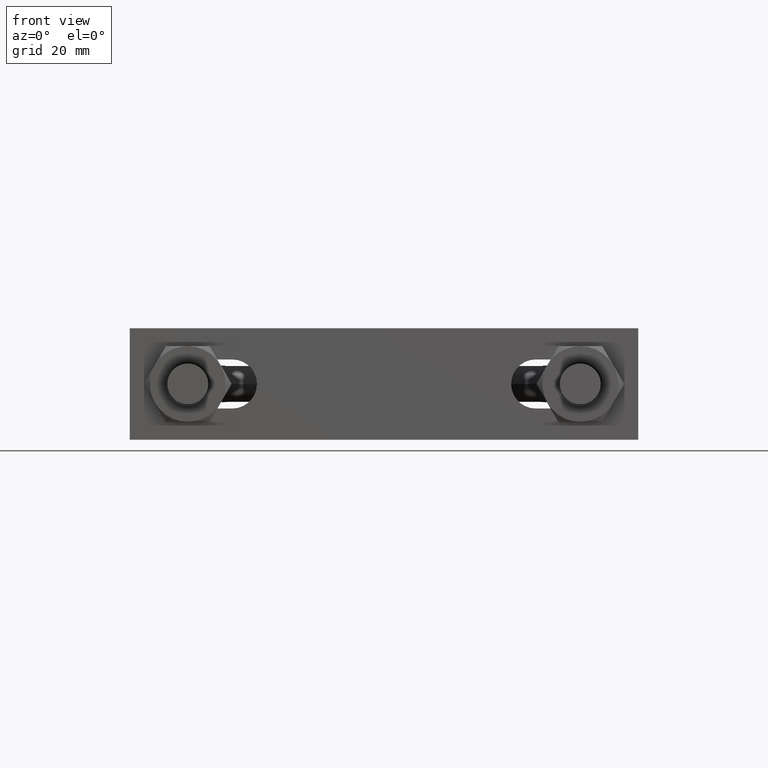
[diagram: clean part render]
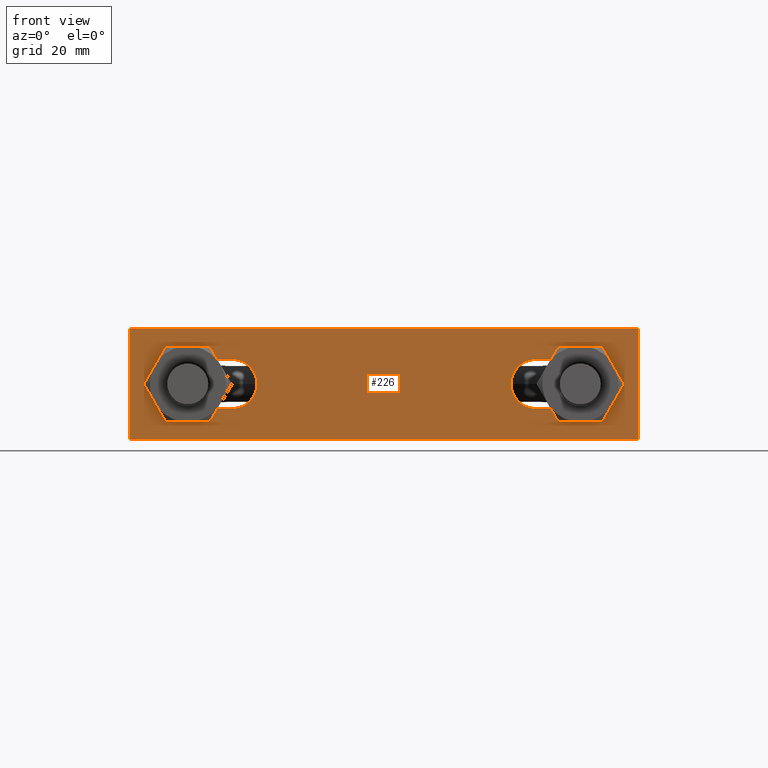
[diagram: same view with one face highlighted and labeled with its STEP entity id]
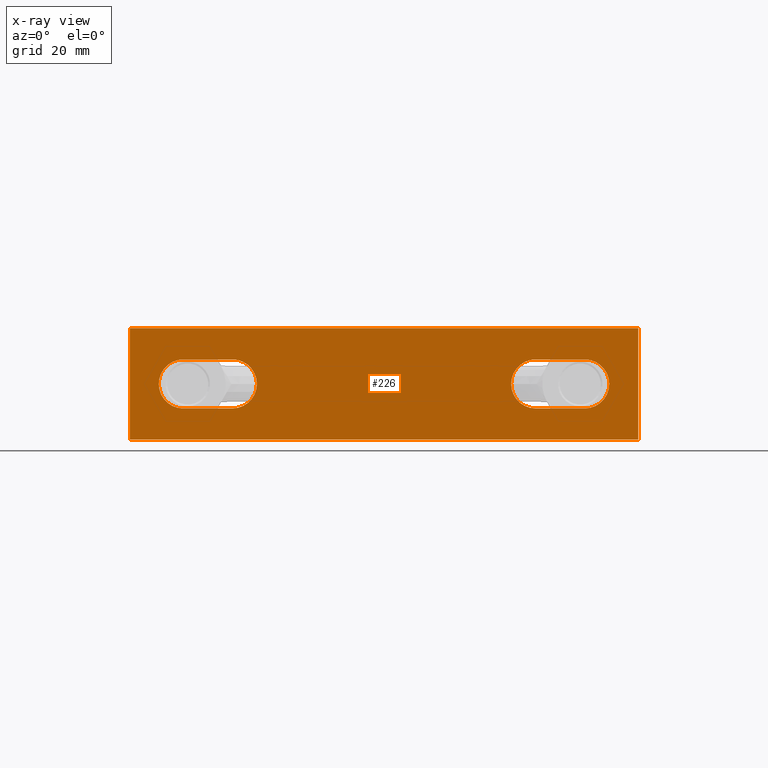
[diagram: x-ray of the same camera — body ghosted, the highlighted face saturated]
A machine part, front view. The second image highlights one B-rep face of the part: STEP entity #226.
The next image is the same camera in x-ray: the body ghosted, the highlighted face saturated — about 0% of this face is hidden behind the body in this view.
In plain terms, the highlighted planar face has unit normal (0, -1, 0).
Its self-contained STEP definition (entity closure, byte-faithful):
#226 = ADVANCED_FACE( '', ( #310, #311, #312 ), #313, .T. );
#310 = FACE_BOUND( '', #620, .T. );
#311 = FACE_OUTER_BOUND( '', #621, .T. );
#312 = FACE_BOUND( '', #622, .T. );
#313 = PLANE( '', #623 );
#620 = EDGE_LOOP( '', ( #792, #793, #794, #795, #796, #797 ) );
#621 = EDGE_LOOP( '', ( #798, #799, #800, #801 ) );
#622 = EDGE_LOOP( '', ( #802, #803, #804, #805, #806, #807 ) );
#623 = AXIS2_PLACEMENT_3D( '', #808, #809, #810 );
#792 = ORIENTED_EDGE( '', *, *, #1294, .F. );
#793 = ORIENTED_EDGE( '', *, *, #1295, .F. );
#794 = ORIENTED_EDGE( '', *, *, #1296, .F. );
#795 = ORIENTED_EDGE( '', *, *, #1297, .F. );
#796 = ORIENTED_EDGE( '', *, *, #1298, .F. );
#797 = ORIENTED_EDGE( '', *, *, #1299, .F. );
#798 = ORIENTED_EDGE( '', *, *, #1300, .T. );
#799 = ORIENTED_EDGE( '', *, *, #1301, .T. );
#800 = ORIENTED_EDGE( '', *, *, #1302, .T. );
#801 = ORIENTED_EDGE( '', *, *, #1303, .T. );
#802 = ORIENTED_EDGE( '', *, *, #1304, .F. );
#803 = ORIENTED_EDGE( '', *, *, #1305, .F. );
#804 = ORIENTED_EDGE( '', *, *, #1306, .F. );
#805 = ORIENTED_EDGE( '', *, *, #1307, .F. );
#806 = ORIENTED_EDGE( '', *, *, #1308, .F. );
#807 = ORIENTED_EDGE( '', *, *, #1309, .F. );
#808 = CARTESIAN_POINT( '', ( -57.0000000000000, -5.80000000000000, -12.5000000000000 ) );
#809 = DIRECTION( '', ( 0.000000000000000, -1.00000000000000, 6.12303176911189E-017 ) );
#810 = DIRECTION( '', ( 0.000000000000000, -6.12303176911189E-017, -1.00000000000000 ) );
#1294 = EDGE_CURVE( '', #1458, #1459, #1460, .T. );
#1295 = EDGE_CURVE( '', #1461, #1458, #1462, .F. );
#1296 = EDGE_CURVE( '', #1463, #1461, #1464, .F. );
#1297 = EDGE_CURVE( '', #1465, #1463, #1466, .T. );
#1298 = EDGE_CURVE( '', #1467, #1465, #1468, .F. );
#1299 = EDGE_CURVE( '', #1459, #1467, #1469, .F. );
#1300 = EDGE_CURVE( '', #1470, #1471, #1472, .T. );
#1301 = EDGE_CURVE( '', #1471, #1473, #1474, .T. );
#1302 = EDGE_CURVE( '', #1473, #1475, #1476, .T. );
#1303 = EDGE_CURVE( '', #1475, #1470, #1477, .T. );
#1304 = EDGE_CURVE( '', #1478, #1479, #1480, .T. );
#1305 = EDGE_CURVE( '', #1481, #1478, #1482, .F. );
#1306 = EDGE_CURVE( '', #1483, #1481, #1484, .F. );
#1307 = EDGE_CURVE( '', #1485, #1483, #1486, .T. );
#1308 = EDGE_CURVE( '', #1487, #1485, #1488, .F. );
#1309 = EDGE_CURVE( '', #1479, #1487, #1489, .F. );
#1458 = VERTEX_POINT( '', #1740 );
#1459 = VERTEX_POINT( '', #1741 );
#1460 = LINE( '', #1742, #1743 );
#1461 = VERTEX_POINT( '', #1744 );
#1462 = CIRCLE( '', #1745, 5.49999999999999 );
#1463 = VERTEX_POINT( '', #1746 );
#1464 = CIRCLE( '', #1747, 5.50000000000000 );
#1465 = VERTEX_POINT( '', #1748 );
#1466 = LINE( '', #1749, #1750 );
#1467 = VERTEX_POINT( '', #1751 );
#1468 = CIRCLE( '', #1752, 5.50000000000000 );
#1469 = CIRCLE( '', #1753, 5.50000000000000 );
#1470 = VERTEX_POINT( '', #1754 );
#1471 = VERTEX_POINT( '', #1755 );
#1472 = LINE( '', #1756, #1757 );
#1473 = VERTEX_POINT( '', #1758 );
#1474 = LINE( '', #1759, #1760 );
#1475 = VERTEX_POINT( '', #1761 );
#1476 = LINE( '', #1762, #1763 );
#1477 = LINE( '', #1764, #1765 );
#1478 = VERTEX_POINT( '', #1766 );
#1479 = VERTEX_POINT( '', #1767 );
#1480 = LINE( '', #1768, #1769 );
#1481 = VERTEX_POINT( '', #1770 );
#1482 = CIRCLE( '', #1771, 5.50000000000000 );
#1483 = VERTEX_POINT( '', #1772 );
#1484 = CIRCLE( '', #1773, 5.50000000000000 );
#1485 = VERTEX_POINT( '', #1774 );
#1486 = LINE( '', #1775, #1776 );
#1487 = VERTEX_POINT( '', #1777 );
#1488 = CIRCLE( '', #1778, 5.49999999999999 );
#1489 = CIRCLE( '', #1779, 5.50000000000000 );
#1740 = CARTESIAN_POINT( '', ( -45.0000000000000, -5.80000500000000, -5.50000000000000 ) );
#1741 = CARTESIAN_POINT( '', ( -34.0000000000000, -5.80000500000000, -5.50000000000000 ) );
#1742 = CARTESIAN_POINT( '', ( -45.0000000000000, -5.80001000000000, -5.50000000000000 ) );
#1743 = VECTOR( '', #2208, 1000.00000000000 );
#1744 = CARTESIAN_POINT( '', ( -50.5000000000000, -5.80000000000000, -2.23987420923171E-015 ) );
#1745 = AXIS2_PLACEMENT_3D( '', #2209, #2210, #2211 );
#1746 = CARTESIAN_POINT( '', ( -45.0000000000000, -5.80000000000000, 5.50000000000000 ) );
#1747 = AXIS2_PLACEMENT_3D( '', #2212, #2213, #2214 );
#1748 = CARTESIAN_POINT( '', ( -34.0000000000000, -5.80001000000000, 5.50000000000000 ) );
#1749 = CARTESIAN_POINT( '', ( -34.0000000000000, -5.80001000000000, 5.50000000000000 ) );
#1750 = VECTOR( '', #2215, 1000.00000000000 );
#1751 = CARTESIAN_POINT( '', ( -28.5000000000000, -5.80000000000000, -1.56634071462941E-015 ) );
#1752 = AXIS2_PLACEMENT_3D( '', #2216, #2217, #2218 );
#1753 = AXIS2_PLACEMENT_3D( '', #2219, #2220, #2221 );
#1754 = CARTESIAN_POINT( '', ( -57.0000000000000, -5.80000000000000, 12.5000000000000 ) );
#1755 = CARTESIAN_POINT( '', ( -57.0000000000000, -5.80000000000000, -12.5000000000000 ) );
#1756 = CARTESIAN_POINT( '', ( -57.0000000000000, -5.80000000000000, 12.5000000000000 ) );
#1757 = VECTOR( '', #2222, 1000.00000000000 );
#1758 = CARTESIAN_POINT( '', ( 57.0000000000000, -5.80000000000000, -12.5000000000000 ) );
#1759 = CARTESIAN_POINT( '', ( -57.0000000000000, -5.80000000000000, -12.5000000000000 ) );
#1760 = VECTOR( '', #2223, 1000.00000000000 );
#1761 = CARTESIAN_POINT( '', ( 57.0000000000000, -5.80000000000000, 12.5000000000000 ) );
#1762 = CARTESIAN_POINT( '', ( 57.0000000000000, -5.80000000000000, -12.5000000000000 ) );
#1763 = VECTOR( '', #2224, 1000.00000000000 );
#1764 = CARTESIAN_POINT( '', ( 57.0000000000000, -5.80000000000000, 12.5000000000000 ) );
#1765 = VECTOR( '', #2225, 1000.00000000000 );
#1766 = CARTESIAN_POINT( '', ( 34.0000000000000, -5.80000500000000, -5.50000000000000 ) );
#1767 = CARTESIAN_POINT( '', ( 45.0000000000000, -5.80000500000000, -5.50000000000000 ) );
#1768 = CARTESIAN_POINT( '', ( 34.0000000000000, -5.80001000000000, -5.50000000000000 ) );
#1769 = VECTOR( '', #2226, 1000.00000000000 );
#1770 = CARTESIAN_POINT( '', ( 28.5000000000000, -5.80000000000000, -2.23987420923171E-015 ) );
#1771 = AXIS2_PLACEMENT_3D( '', #2227, #2228, #2229 );
#1772 = CARTESIAN_POINT( '', ( 34.0000000000000, -5.80000000000000, 5.50000000000000 ) );
#1773 = AXIS2_PLACEMENT_3D( '', #2230, #2231, #2232 );
#1774 = CARTESIAN_POINT( '', ( 45.0000000000000, -5.80001000000000, 5.49999999999999 ) );
#1775 = CARTESIAN_POINT( '', ( 45.0000000000000, -5.80001000000000, 5.50000000000000 ) );
#1776 = VECTOR( '', #2233, 1000.00000000000 );
#1777 = CARTESIAN_POINT( '', ( 50.5000000000000, -5.80000000000000, -1.56634071462941E-015 ) );
#1778 = AXIS2_PLACEMENT_3D( '', #2234, #2235, #2236 );
#1779 = AXIS2_PLACEMENT_3D( '', #2237, #2238, #2239 );
#2208 = DIRECTION( '', ( 1.00000000000000, 0.000000000000000, 0.000000000000000 ) );
#2209 = CARTESIAN_POINT( '', ( -45.0000000000000, -5.80000000000000, -1.73472408827998E-015 ) );
#2210 = DIRECTION( '', ( 0.000000000000000, 1.00000000000000, -6.12303176911189E-017 ) );
#2211 = DIRECTION( '', ( 0.000000000000000, 6.12303176911189E-017, 1.00000000000000 ) );
#2212 = CARTESIAN_POINT( '', ( -45.0000000000000, -5.80000000000000, -1.73472408827998E-015 ) );
#2213 = DIRECTION( '', ( 0.000000000000000, 1.00000000000000, -6.12303176911189E-017 ) );
#2214 = DIRECTION( '', ( 0.000000000000000, 6.12303176911189E-017, 1.00000000000000 ) );
#2215 = DIRECTION( '', ( -1.00000000000000, 0.000000000000000, 0.000000000000000 ) );
#2216 = CARTESIAN_POINT( '', ( -34.0000000000000, -5.80000000000000, -1.73472408827998E-015 ) );
#2217 = DIRECTION( '', ( 0.000000000000000, 1.00000000000000, -6.12303176911189E-017 ) );
#2218 = DIRECTION( '', ( 0.000000000000000, 6.12303176911189E-017, 1.00000000000000 ) );
#2219 = CARTESIAN_POINT( '', ( -34.0000000000000, -5.80000000000000, -1.73472408827998E-015 ) );
#2220 = DIRECTION( '', ( 0.000000000000000, 1.00000000000000, -6.12303176911189E-017 ) );
#2221 = DIRECTION( '', ( 0.000000000000000, 6.12303176911189E-017, 1.00000000000000 ) );
#2222 = DIRECTION( '', ( 0.000000000000000, -6.12303176911189E-017, -1.00000000000000 ) );
#2223 = DIRECTION( '', ( 1.00000000000000, 0.000000000000000, 0.000000000000000 ) );
#2224 = DIRECTION( '', ( 0.000000000000000, 6.12303176911189E-017, 1.00000000000000 ) );
#2225 = DIRECTION( '', ( -1.00000000000000, 0.000000000000000, 0.000000000000000 ) );
#2226 = DIRECTION( '', ( 1.00000000000000, -4.85957220016763E-049, 2.69760447322722E-065 ) );
#2227 = CARTESIAN_POINT( '', ( 34.0000000000000, -5.80000000000000, -1.73472408827998E-015 ) );
#2228 = DIRECTION( '', ( -2.92604772168262E-098, 1.00000000000000, -6.12303176911189E-017 ) );
#2229 = DIRECTION( '', ( 0.000000000000000, 6.12303176911189E-017, 1.00000000000000 ) );
#2230 = CARTESIAN_POINT( '', ( 34.0000000000000, -5.80000000000000, -1.73472408827998E-015 ) );
#2231 = DIRECTION( '', ( -2.92604772168262E-098, 1.00000000000000, -6.12303176911189E-017 ) );
#2232 = DIRECTION( '', ( 0.000000000000000, 6.12303176911189E-017, 1.00000000000000 ) );
#2233 = DIRECTION( '', ( -1.00000000000000, 4.85957220016763E-049, -2.69760447322722E-065 ) );
#2234 = CARTESIAN_POINT( '', ( 45.0000000000000, -5.80000000000000, -1.73472408827998E-015 ) );
#2235 = DIRECTION( '', ( -2.92604772168262E-098, 1.00000000000000, -6.12303176911189E-017 ) );
#2236 = DIRECTION( '', ( 0.000000000000000, 6.12303176911189E-017, 1.00000000000000 ) );
#2237 = CARTESIAN_POINT( '', ( 45.0000000000000, -5.80000000000000, -1.73472408827998E-015 ) );
#2238 = DIRECTION( '', ( -2.92604772168262E-098, 1.00000000000000, -6.12303176911189E-017 ) );
#2239 = DIRECTION( '', ( 0.000000000000000, 6.12303176911189E-017, 1.00000000000000 ) );